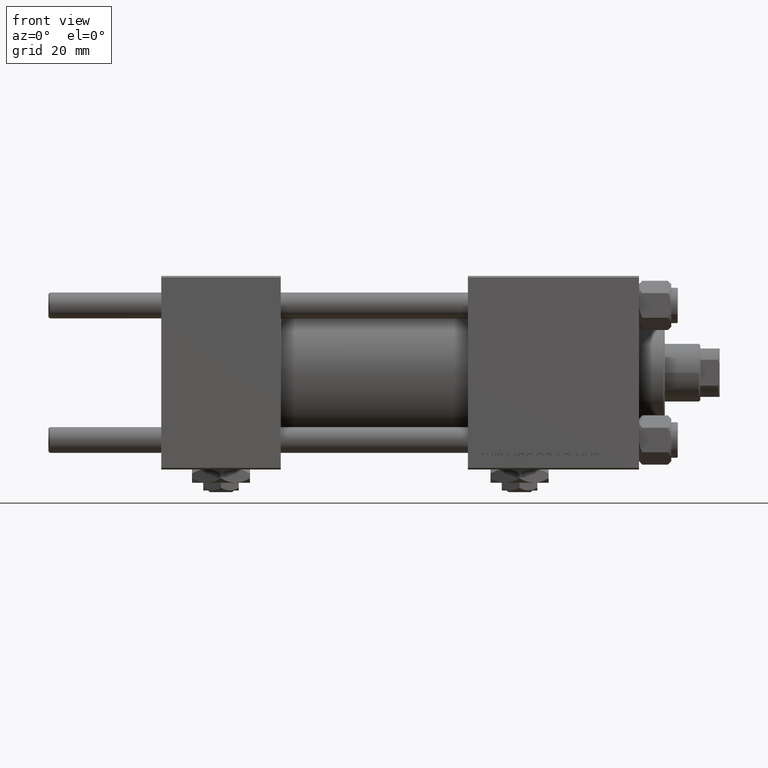
[diagram: clean part render]
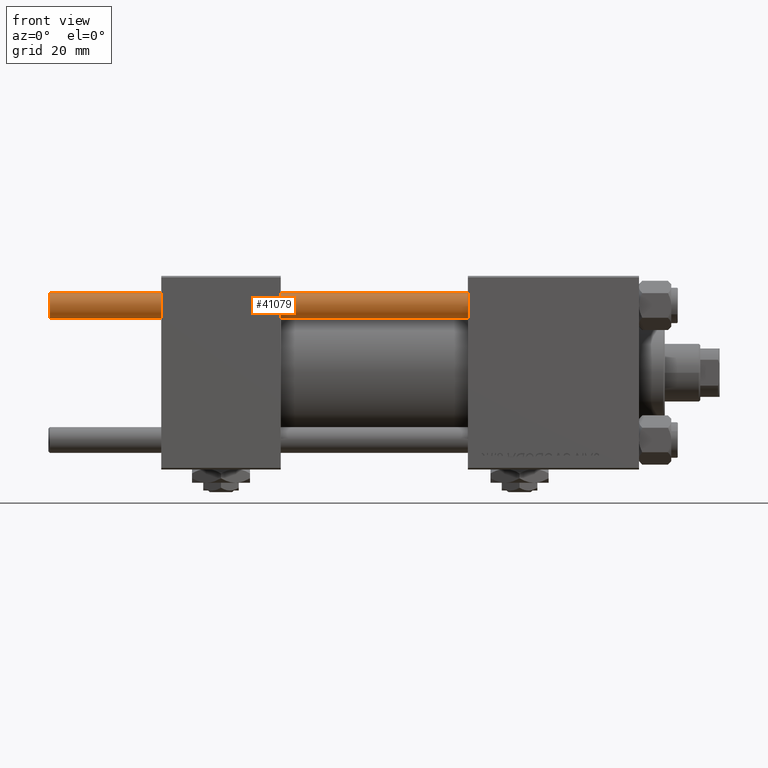
[diagram: same view with one face highlighted and labeled with its STEP entity id]
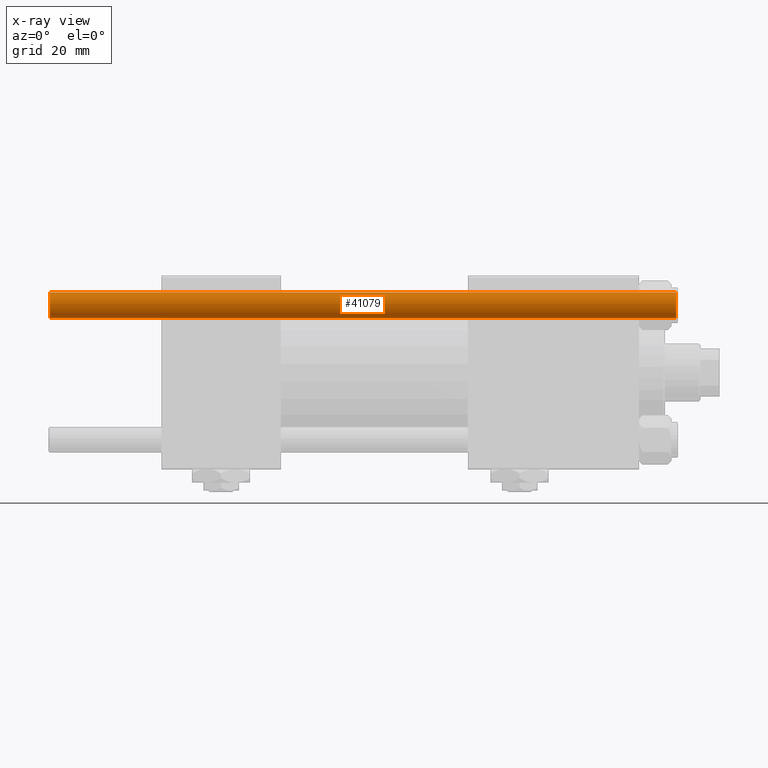
[diagram: x-ray of the same camera — body ghosted, the highlighted face saturated]
A machine part, front view. The second image highlights one B-rep face of the part: STEP entity #41079.
The next image is the same camera in x-ray: the body ghosted, the highlighted face saturated — about 0% of this face is hidden behind the body in this view.
In plain terms, the highlighted cylindrical surface (edge-blend (fillet) strip) has radius 4 mm, axis along (1, -0, 0).
Its self-contained STEP definition (entity closure, byte-faithful):
#2330 = EDGE_CURVE ( 'NONE', #30968, #37927, #7077, .T. ) ;
#4090 = CARTESIAN_POINT ( 'NONE',  ( -4.000000000000000000, 0.000000000000000000, 0.5000000000000004441 ) ) ;
#4547 = AXIS2_PLACEMENT_3D ( 'NONE', #50156, #29168, #17598 ) ;
#5551 = FACE_OUTER_BOUND ( 'NONE', #10273, .T. ) ;
#5588 = LINE ( 'NONE', #37374, #13469 ) ;
#6254 = CARTESIAN_POINT ( 'NONE',  ( 4.000000000000000000, 4.898587196589412829E-16, 0.5000000000000004441 ) ) ;
#6565 = DIRECTION ( 'NONE',  ( -0.000000000000000000, -0.000000000000000000, -1.000000000000000000 ) ) ;
#7077 = LINE ( 'NONE', #34935, #12389 ) ;
#10273 = EDGE_LOOP ( 'NONE', ( #46531, #27031, #31915, #34953 ) ) ;
#10541 = DIRECTION ( 'NONE',  ( 1.000000000000000000, 0.000000000000000000, 0.000000000000000000 ) ) ;
#12389 = VECTOR ( 'NONE', #6565, 1000.000000000000000 ) ;
#13469 = VECTOR ( 'NONE', #29232, 1000.000000000000000 ) ;
#13681 = DIRECTION ( 'NONE',  ( -1.000000000000000000, 0.000000000000000000, 0.000000000000000000 ) ) ;
#14226 = DIRECTION ( 'NONE',  ( -0.000000000000000000, -0.000000000000000000, 1.000000000000000000 ) ) ;
#17598 = DIRECTION ( 'NONE',  ( 1.000000000000000000, 0.000000000000000000, 0.000000000000000000 ) ) ;
#26353 = CIRCLE ( 'NONE', #4547, 4.000000000000000000 ) ;
#26589 = CARTESIAN_POINT ( 'NONE',  ( 0.000000000000000000, 0.000000000000000000, 0.5000000000000004441 ) ) ;
#27031 = ORIENTED_EDGE ( 'NONE', *, *, #2330, .T. ) ;
#29168 = DIRECTION ( 'NONE',  ( 0.000000000000000000, 0.000000000000000000, -1.000000000000000000 ) ) ;
#29232 = DIRECTION ( 'NONE',  ( -0.000000000000000000, -0.000000000000000000, -1.000000000000000000 ) ) ;
#29531 = AXIS2_PLACEMENT_3D ( 'NONE', #26589, #14226, #10541 ) ;
#29576 = AXIS2_PLACEMENT_3D ( 'NONE', #33656, #49672, #13681 ) ;
#30968 = VERTEX_POINT ( 'NONE', #49272 ) ;
#31915 = ORIENTED_EDGE ( 'NONE', *, *, #42347, .T. ) ;
#33656 = CARTESIAN_POINT ( 'NONE',  ( 0.000000000000000000, 0.000000000000000000, 195.0000000000000000 ) ) ;
#34935 = CARTESIAN_POINT ( 'NONE',  ( 4.000000000000000000, 4.898587196589412829E-16, 195.0000000000000000 ) ) ;
#34953 = ORIENTED_EDGE ( 'NONE', *, *, #36403, .F. ) ;
#36403 = EDGE_CURVE ( 'NONE', #44736, #40772, #5588, .T. ) ;
#37374 = CARTESIAN_POINT ( 'NONE',  ( -4.000000000000000000, 0.000000000000000000, 195.0000000000000000 ) ) ;
#37589 = CYLINDRICAL_SURFACE ( 'NONE', #29576, 4.000000000000000000 ) ;
#37927 = VERTEX_POINT ( 'NONE', #6254 ) ;
#38754 = CIRCLE ( 'NONE', #29531, 4.000000000000000000 ) ;
#40772 = VERTEX_POINT ( 'NONE', #4090 ) ;
#41079 = ADVANCED_FACE ( 'NONE', ( #5551 ), #37589, .T. ) ;
#42347 = EDGE_CURVE ( 'NONE', #37927, #40772, #38754, .T. ) ;
#44736 = VERTEX_POINT ( 'NONE', #48701 ) ;
#46531 = ORIENTED_EDGE ( 'NONE', *, *, #48737, .T. ) ;
#48701 = CARTESIAN_POINT ( 'NONE',  ( -4.000000000000000000, 0.000000000000000000, 194.5000000000000568 ) ) ;
#48737 = EDGE_CURVE ( 'NONE', #44736, #30968, #26353, .T. ) ;
#49272 = CARTESIAN_POINT ( 'NONE',  ( 4.000000000000000000, 4.898587196589412829E-16, 194.5000000000000568 ) ) ;
#49672 = DIRECTION ( 'NONE',  ( -0.000000000000000000, -0.000000000000000000, -1.000000000000000000 ) ) ;
#50156 = CARTESIAN_POINT ( 'NONE',  ( 0.000000000000000000, 0.000000000000000000, 194.5000000000000568 ) ) ;